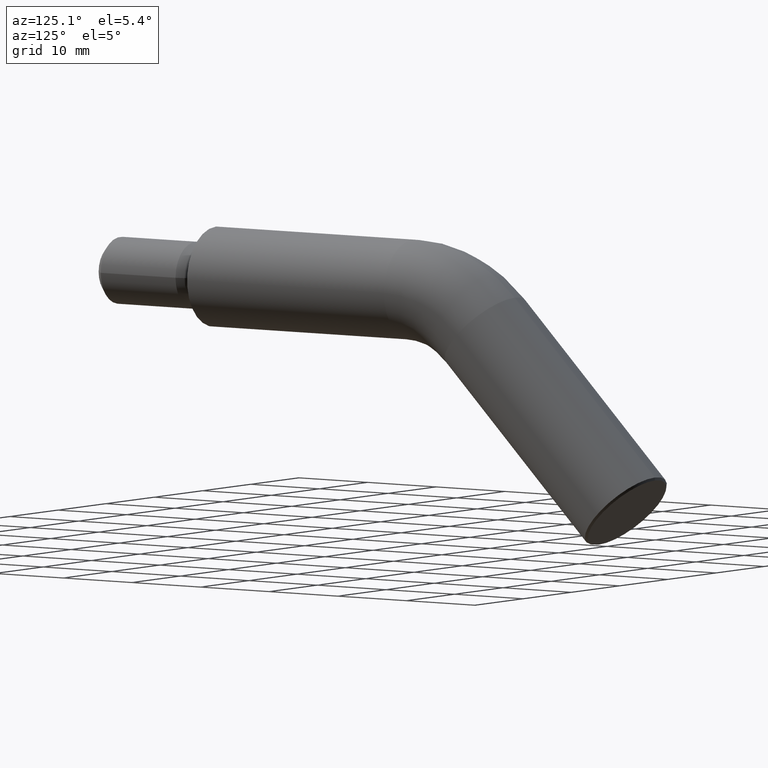
[diagram: clean part render]
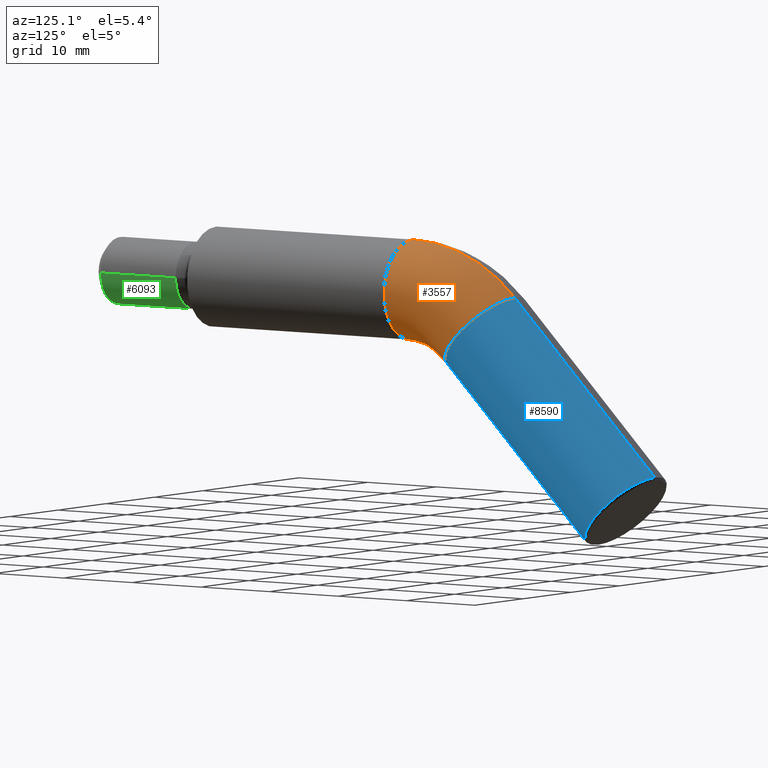
[diagram: same view with three faces highlighted in distinct colors, each labeled with its STEP entity id]
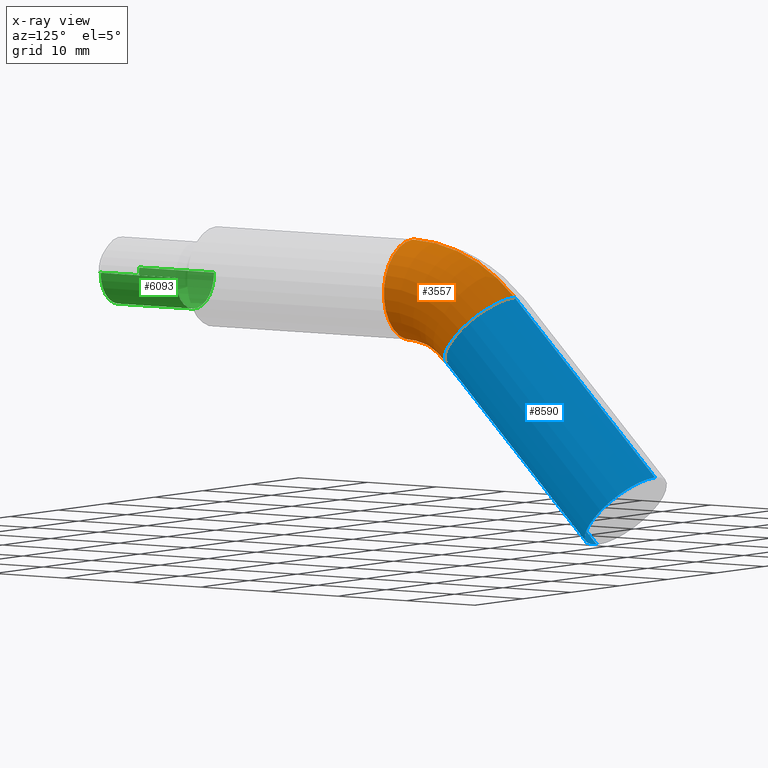
[diagram: x-ray of the same camera — body ghosted, the three highlighted faces saturated]
A machine part, auxiliary view with three faces highlighted in distinct colors.
The next image is the same camera in x-ray (body ghosted, the three faces saturated) — at least one of them is partly hidden behind the body in this view.
Their STEP definitions:

[orange] entity #3557 — the highlighted toroidal blend (fillet) surface has major radius 15 mm and minor (blend) radius 6 mm.
#294 = TOROIDAL_SURFACE ( 'NONE', #3953, 15.00000000000000000, 6.000000000000000900 ) ;
#1053 = FACE_OUTER_BOUND ( 'NONE', #6923, .T. ) ;
#1263 = VERTEX_POINT ( 'NONE', #4447 ) ;
#1467 = VERTEX_POINT ( 'NONE', #10799 ) ;
#2660 = CARTESIAN_POINT ( 'NONE',  ( 0.0000000000000000000, 28.78679656440364800, -15.00000000000000000 ) ) ;
#2761 = DIRECTION ( 'NONE',  ( 0.0000000000000000000, 0.0000000000000000000, 1.000000000000000000 ) ) ;
#2966 = DIRECTION ( 'NONE',  ( -1.000000000000000000, -0.0000000000000000000, -0.0000000000000000000 ) ) ;
#3308 = EDGE_CURVE ( 'NONE', #5418, #3396, #10421, .T. ) ;
#3396 = VERTEX_POINT ( 'NONE', #6987 ) ;
#3557 = ADVANCED_FACE ( 'NONE', ( #1053 ), #294, .T. ) ;
#3939 = CARTESIAN_POINT ( 'NONE',  ( 7.347880794884120700E-016, 28.78679656440364800, -15.00000000000000000 ) ) ;
#3953 = AXIS2_PLACEMENT_3D ( 'NONE', #2660, #11326, #7461 ) ;
#4165 = DIRECTION ( 'NONE',  ( 0.0000000000000000000, 0.7071067811865463500, -0.7071067811865487900 ) ) ;
#4447 = CARTESIAN_POINT ( 'NONE',  ( 7.347880794884120700E-016, 35.15075759508259500, -8.636038969321081300 ) ) ;
#4611 = CARTESIAN_POINT ( 'NONE',  ( 0.0000000000000000000, 28.78679656440364800, -15.00000000000000000 ) ) ;
#5025 = CIRCLE ( 'NONE', #11289, 5.999999999999999100 ) ;
#5050 = CARTESIAN_POINT ( 'NONE',  ( 0.0000000000000000000, 39.39339828220188600, -4.393398282201803600 ) ) ;
#5161 = EDGE_CURVE ( 'NONE', #5418, #1467, #5357, .T. ) ;
#5357 = CIRCLE ( 'NONE', #8038, 6.000000000000000900 ) ;
#5418 = VERTEX_POINT ( 'NONE', #7311 ) ;
#6063 = ORIENTED_EDGE ( 'NONE', *, *, #3308, .F. ) ;
#6360 = EDGE_CURVE ( 'NONE', #1467, #1263, #11004, .T. ) ;
#6722 = DIRECTION ( 'NONE',  ( -1.000000000000000000, -0.0000000000000000000, -0.0000000000000000000 ) ) ;
#6781 = CARTESIAN_POINT ( 'NONE',  ( 0.0000000000000000000, 28.78679656440364800, 0.0000000000000000000 ) ) ;
#6892 = EDGE_CURVE ( 'NONE', #3396, #1263, #5025, .T. ) ;
#6923 = EDGE_LOOP ( 'NONE', ( #6063, #12705, #10380, #8978 ) ) ;
#6987 = CARTESIAN_POINT ( 'NONE',  ( 0.0000000000000000000, 43.63603896932117700, -0.1507575950825262900 ) ) ;
#7080 = DIRECTION ( 'NONE',  ( 0.0000000000000000000, 0.7071067811865485700, 0.7071067811865465700 ) ) ;
#7311 = CARTESIAN_POINT ( 'NONE',  ( 7.347880794884120700E-016, 28.78679656440364800, 6.000000000000000900 ) ) ;
#7461 = DIRECTION ( 'NONE',  ( 0.0000000000000000000, 0.0000000000000000000, 1.000000000000000000 ) ) ;
#7823 = DIRECTION ( 'NONE',  ( 0.0000000000000000000, 0.0000000000000000000, 1.000000000000000000 ) ) ;
#8038 = AXIS2_PLACEMENT_3D ( 'NONE', #6781, #11647, #7823 ) ;
#8978 = ORIENTED_EDGE ( 'NONE', *, *, #6892, .F. ) ;
#10380 = ORIENTED_EDGE ( 'NONE', *, *, #6360, .T. ) ;
#10421 = CIRCLE ( 'NONE', #12106, 21.00000000000000000 ) ;
#10799 = CARTESIAN_POINT ( 'NONE',  ( 0.0000000000000000000, 28.78679656440364800, -6.000000000000000900 ) ) ;
#11004 = CIRCLE ( 'NONE', #11701, 8.999999999999998200 ) ;
#11289 = AXIS2_PLACEMENT_3D ( 'NONE', #5050, #4165, #7080 ) ;
#11326 = DIRECTION ( 'NONE',  ( -1.000000000000000000, -0.0000000000000000000, -0.0000000000000000000 ) ) ;
#11647 = DIRECTION ( 'NONE',  ( 0.0000000000000000000, 1.000000000000000000, 0.0000000000000000000 ) ) ;
#11701 = AXIS2_PLACEMENT_3D ( 'NONE', #3939, #2966, #11759 ) ;
#11759 = DIRECTION ( 'NONE',  ( 0.0000000000000000000, 0.0000000000000000000, 1.000000000000000000 ) ) ;
#12106 = AXIS2_PLACEMENT_3D ( 'NONE', #4611, #6722, #2761 ) ;
#12705 = ORIENTED_EDGE ( 'NONE', *, *, #5161, .T. ) ;

[blue] entity #8590 — the highlighted cylindrical surface (partial cylindrical patch) has radius 6 mm, axis along (0, 0.7071, -0.7071).
#456 = CARTESIAN_POINT ( 'NONE',  ( 7.347880794884120700E-016, 35.15075759508259500, -8.636038969321081300 ) ) ;
#497 = CARTESIAN_POINT ( 'NONE',  ( 0.0000000000000000000, 59.82322330470335500, -24.82322330470334400 ) ) ;
#503 = CARTESIAN_POINT ( 'NONE',  ( 0.0000000000000000000, 64.06586399182259600, -20.58058261758401700 ) ) ;
#541 = VECTOR ( 'NONE', #7817, 999.9999999999998900 ) ;
#1263 = VERTEX_POINT ( 'NONE', #4447 ) ;
#1538 = DIRECTION ( 'NONE',  ( 0.0000000000000000000, 0.7071067811865462400, -0.7071067811865487900 ) ) ;
#2474 = DIRECTION ( 'NONE',  ( 0.0000000000000000000, -0.7071067811865544600, 0.7071067811865405800 ) ) ;
#2900 = CARTESIAN_POINT ( 'NONE',  ( 0.0000000000000000000, 43.63603896932117700, -0.1507575950825254300 ) ) ;
#3261 = CARTESIAN_POINT ( 'NONE',  ( 7.347880794884120700E-016, 55.58058261758411300, -29.06586399182267400 ) ) ;
#3396 = VERTEX_POINT ( 'NONE', #6987 ) ;
#3673 = DIRECTION ( 'NONE',  ( 0.0000000000000000000, 0.7071067811865485700, 0.7071067811865463500 ) ) ;
#4165 = DIRECTION ( 'NONE',  ( 0.0000000000000000000, 0.7071067811865463500, -0.7071067811865487900 ) ) ;
#4255 = LINE ( 'NONE', #456, #4714 ) ;
#4400 = VERTEX_POINT ( 'NONE', #3261 ) ;
#4447 = CARTESIAN_POINT ( 'NONE',  ( 7.347880794884120700E-016, 35.15075759508259500, -8.636038969321081300 ) ) ;
#4714 = VECTOR ( 'NONE', #10595, 999.9999999999998900 ) ;
#4770 = ORIENTED_EDGE ( 'NONE', *, *, #6892, .T. ) ;
#5025 = CIRCLE ( 'NONE', #11289, 5.999999999999999100 ) ;
#5050 = CARTESIAN_POINT ( 'NONE',  ( 0.0000000000000000000, 39.39339828220188600, -4.393398282201803600 ) ) ;
#5064 = ORIENTED_EDGE ( 'NONE', *, *, #8636, .F. ) ;
#5420 = EDGE_CURVE ( 'NONE', #1263, #4400, #4255, .T. ) ;
#5452 = CARTESIAN_POINT ( 'NONE',  ( 0.0000000000000000000, 39.39339828220188600, -4.393398282201803600 ) ) ;
#6892 = EDGE_CURVE ( 'NONE', #3396, #1263, #5025, .T. ) ;
#6987 = CARTESIAN_POINT ( 'NONE',  ( 0.0000000000000000000, 43.63603896932117700, -0.1507575950825262900 ) ) ;
#7080 = DIRECTION ( 'NONE',  ( 0.0000000000000000000, 0.7071067811865485700, 0.7071067811865465700 ) ) ;
#7480 = FACE_OUTER_BOUND ( 'NONE', #10644, .T. ) ;
#7723 = ORIENTED_EDGE ( 'NONE', *, *, #9081, .T. ) ;
#7778 = LINE ( 'NONE', #2900, #541 ) ;
#7817 = DIRECTION ( 'NONE',  ( 0.0000000000000000000, 0.7071067811865462400, -0.7071067811865489100 ) ) ;
#8590 = ADVANCED_FACE ( 'NONE', ( #7480 ), #9926, .T. ) ;
#8636 = EDGE_CURVE ( 'NONE', #3396, #8939, #7778, .T. ) ;
#8815 = ORIENTED_EDGE ( 'NONE', *, *, #5420, .T. ) ;
#8939 = VERTEX_POINT ( 'NONE', #503 ) ;
#9081 = EDGE_CURVE ( 'NONE', #4400, #8939, #9759, .T. ) ;
#9759 = CIRCLE ( 'NONE', #10944, 5.999999999999998200 ) ;
#9926 = CYLINDRICAL_SURFACE ( 'NONE', #10680, 5.999999999999999100 ) ;
#10595 = DIRECTION ( 'NONE',  ( 0.0000000000000000000, 0.7071067811865462400, -0.7071067811865489100 ) ) ;
#10644 = EDGE_LOOP ( 'NONE', ( #4770, #8815, #7723, #5064 ) ) ;
#10680 = AXIS2_PLACEMENT_3D ( 'NONE', #5452, #1538, #3673 ) ;
#10944 = AXIS2_PLACEMENT_3D ( 'NONE', #497, #2474, #11133 ) ;
#11133 = DIRECTION ( 'NONE',  ( 0.0000000000000000000, 0.7071067811865405800, 0.7071067811865544600 ) ) ;
#11289 = AXIS2_PLACEMENT_3D ( 'NONE', #5050, #4165, #7080 ) ;

[green] entity #6093 — the highlighted cylindrical surface (edge-blend (fillet) strip) has radius 4 mm, axis along (-0, 1, -0).
#596 = AXIS2_PLACEMENT_3D ( 'NONE', #1253, #8818, #899 ) ;
#896 = VERTEX_POINT ( 'NONE', #5460 ) ;
#899 = DIRECTION ( 'NONE',  ( -1.000000000000000000, -1.163267163280471000E-016, 0.0000000000000000000 ) ) ;
#1082 = AXIS2_PLACEMENT_3D ( 'NONE', #8867, #1943, #11852 ) ;
#1177 = CYLINDRICAL_SURFACE ( 'NONE', #596, 4.000000000000000900 ) ;
#1253 = CARTESIAN_POINT ( 'NONE',  ( 0.0000000000000000000, 0.0000000000000000000, 0.0000000000000000000 ) ) ;
#1358 = CIRCLE ( 'NONE', #9166, 4.000000000000001800 ) ;
#1584 = DIRECTION ( 'NONE',  ( -1.163267163280471000E-016, 1.000000000000000000, -0.0000000000000000000 ) ) ;
#1632 = VECTOR ( 'NONE', #7744, 1000.000000000000000 ) ;
#1867 = DIRECTION ( 'NONE',  ( -1.000000000000000000, -1.084202172485503900E-016, 0.0000000000000000000 ) ) ;
#1943 = DIRECTION ( 'NONE',  ( -1.163267163280473200E-016, 1.000000000000000000, -0.0000000000000000000 ) ) ;
#2206 = CARTESIAN_POINT ( 'NONE',  ( -3.999999999999999100, -13.91251133647407200, 0.0000000000000000000 ) ) ;
#3342 = EDGE_CURVE ( 'NONE', #10676, #11810, #4121, .T. ) ;
#4118 = ORIENTED_EDGE ( 'NONE', *, *, #5103, .F. ) ;
#4121 = CIRCLE ( 'NONE', #1082, 4.000000000000000900 ) ;
#4232 = LINE ( 'NONE', #8810, #1632 ) ;
#4740 = EDGE_CURVE ( 'NONE', #11321, #896, #1358, .T. ) ;
#4794 = CARTESIAN_POINT ( 'NONE',  ( 3.489801489841412400E-016, -2.999999999999999600, 0.0000000000000000000 ) ) ;
#5103 = EDGE_CURVE ( 'NONE', #10676, #11321, #11626, .T. ) ;
#5460 = CARTESIAN_POINT ( 'NONE',  ( -4.000000000000001800, -3.000000000000000000, 0.0000000000000000000 ) ) ;
#5797 = DIRECTION ( 'NONE',  ( -1.163267163280471000E-016, 1.000000000000000000, -0.0000000000000000000 ) ) ;
#6093 = ADVANCED_FACE ( 'NONE', ( #10844 ), #1177, .T. ) ;
#7744 = DIRECTION ( 'NONE',  ( -1.163267163280471000E-016, 1.000000000000000000, -0.0000000000000000000 ) ) ;
#7780 = CARTESIAN_POINT ( 'NONE',  ( 4.000000000000001800, -2.999999999999999100, 4.898587196589413800E-016 ) ) ;
#8255 = EDGE_CURVE ( 'NONE', #11810, #896, #4232, .T. ) ;
#8361 = CARTESIAN_POINT ( 'NONE',  ( 4.000000000000002700, -13.91251133647407200, 4.898587196589414800E-016 ) ) ;
#8810 = CARTESIAN_POINT ( 'NONE',  ( -4.000000000000000900, -4.653068653121884800E-016, 0.0000000000000000000 ) ) ;
#8818 = DIRECTION ( 'NONE',  ( -1.163267163280471000E-016, 1.000000000000000000, -0.0000000000000000000 ) ) ;
#8867 = CARTESIAN_POINT ( 'NONE',  ( 1.618396759648758700E-015, -13.91251133647407200, 0.0000000000000000000 ) ) ;
#9166 = AXIS2_PLACEMENT_3D ( 'NONE', #4794, #5797, #1867 ) ;
#10351 = EDGE_LOOP ( 'NONE', ( #4118, #12399, #11849, #12236 ) ) ;
#10676 = VERTEX_POINT ( 'NONE', #8361 ) ;
#10844 = FACE_OUTER_BOUND ( 'NONE', #10351, .T. ) ;
#11321 = VERTEX_POINT ( 'NONE', #7780 ) ;
#11626 = LINE ( 'NONE', #12377, #12533 ) ;
#11810 = VERTEX_POINT ( 'NONE', #2206 ) ;
#11849 = ORIENTED_EDGE ( 'NONE', *, *, #8255, .T. ) ;
#11852 = DIRECTION ( 'NONE',  ( -1.000000000000000000, 0.0000000000000000000, 0.0000000000000000000 ) ) ;
#12236 = ORIENTED_EDGE ( 'NONE', *, *, #4740, .F. ) ;
#12377 = CARTESIAN_POINT ( 'NONE',  ( 4.000000000000000900, 4.653068653121884800E-016, 4.898587196589413800E-016 ) ) ;
#12399 = ORIENTED_EDGE ( 'NONE', *, *, #3342, .T. ) ;
#12533 = VECTOR ( 'NONE', #1584, 1000.000000000000000 ) ;